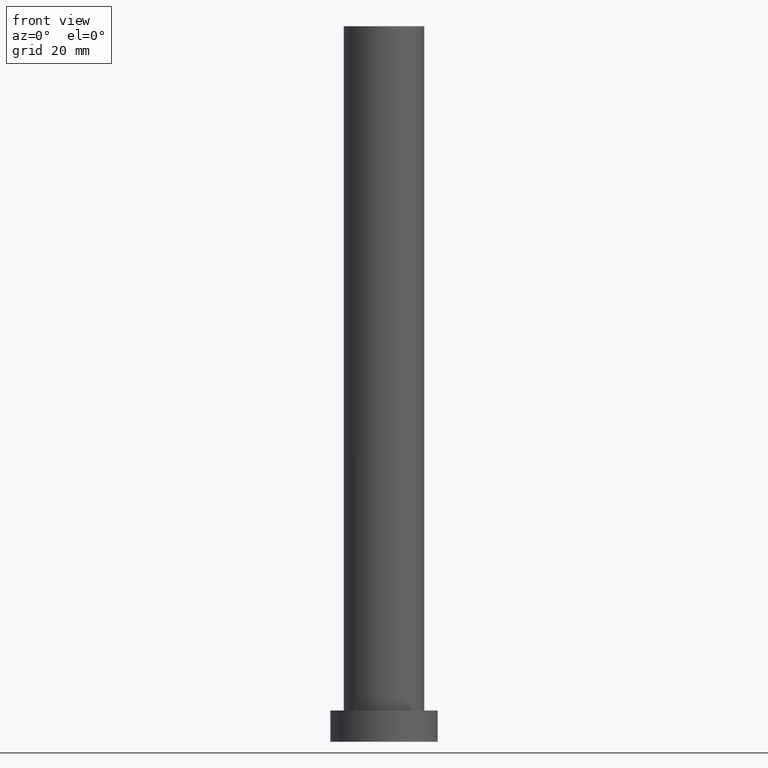
[diagram: clean part render]
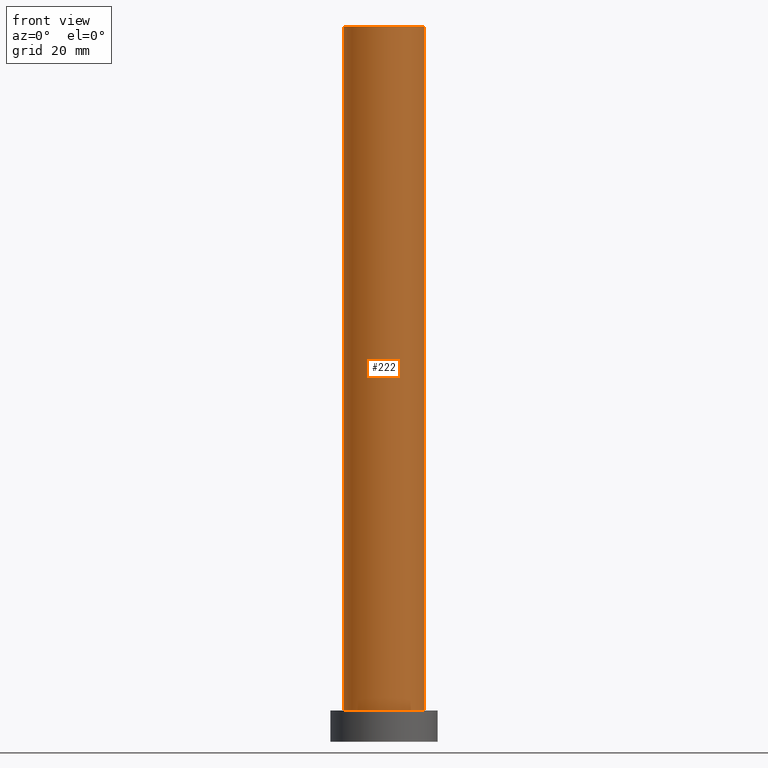
[diagram: same view with one face highlighted and labeled with its STEP entity id]
A machine part, front view. The second image highlights one B-rep face of the part: STEP entity #222.
In plain terms, the highlighted cylindrical surface (partial cylindrical patch) has radius 9 mm, axis along (-0, -0, -1).
Its self-contained STEP definition (entity closure, byte-faithful):
#1 = VERTEX_POINT ( 'NONE', #101 ) ;
#4 = DIRECTION ( 'NONE',  ( 0.000000000000000000, 0.000000000000000000, 1.000000000000000000 ) ) ;
#5 = LINE ( 'NONE', #227, #150 ) ;
#10 = EDGE_CURVE ( 'NONE', #177, #1, #235, .T. ) ;
#18 = EDGE_CURVE ( 'NONE', #1, #254, #213, .T. ) ;
#20 = DIRECTION ( 'NONE',  ( 1.000000000000000000, 0.000000000000000000, 0.000000000000000000 ) ) ;
#24 = ORIENTED_EDGE ( 'NONE', *, *, #18, .F. ) ;
#27 = DIRECTION ( 'NONE',  ( -0.000000000000000000, -0.000000000000000000, -1.000000000000000000 ) ) ;
#29 = DIRECTION ( 'NONE',  ( -0.000000000000000000, -0.000000000000000000, -1.000000000000000000 ) ) ;
#45 = CYLINDRICAL_SURFACE ( 'NONE', #245, 9.000000000000000000 ) ;
#57 = EDGE_CURVE ( 'NONE', #177, #65, #5, .T. ) ;
#65 = VERTEX_POINT ( 'NONE', #124 ) ;
#94 = AXIS2_PLACEMENT_3D ( 'NONE', #181, #224, #146 ) ;
#101 = CARTESIAN_POINT ( 'NONE',  ( 9.000000000000000000, 1.102182119232617714E-15, 160.0000000000000000 ) ) ;
#104 = CARTESIAN_POINT ( 'NONE',  ( 0.000000000000000000, 0.000000000000000000, 160.0000000000000000 ) ) ;
#123 = EDGE_CURVE ( 'NONE', #65, #254, #170, .T. ) ;
#124 = CARTESIAN_POINT ( 'NONE',  ( -9.000000000000000000, 0.000000000000000000, 7.000000000000000000 ) ) ;
#125 = CARTESIAN_POINT ( 'NONE',  ( -9.000000000000000000, 0.000000000000000000, 160.0000000000000000 ) ) ;
#133 = CARTESIAN_POINT ( 'NONE',  ( 9.000000000000000000, 1.102182119232617714E-15, 7.000000000000000000 ) ) ;
#139 = ORIENTED_EDGE ( 'NONE', *, *, #57, .T. ) ;
#142 = VECTOR ( 'NONE', #27, 1000.000000000000000 ) ;
#146 = DIRECTION ( 'NONE',  ( 1.000000000000000000, 0.000000000000000000, 0.000000000000000000 ) ) ;
#150 = VECTOR ( 'NONE', #183, 1000.000000000000000 ) ;
#156 = ORIENTED_EDGE ( 'NONE', *, *, #10, .F. ) ;
#160 = DIRECTION ( 'NONE',  ( -1.000000000000000000, 0.000000000000000000, 0.000000000000000000 ) ) ;
#170 = CIRCLE ( 'NONE', #94, 9.000000000000000000 ) ;
#177 = VERTEX_POINT ( 'NONE', #125 ) ;
#179 = CARTESIAN_POINT ( 'NONE',  ( 0.000000000000000000, 0.000000000000000000, 160.0000000000000000 ) ) ;
#181 = CARTESIAN_POINT ( 'NONE',  ( 0.000000000000000000, 0.000000000000000000, 7.000000000000000000 ) ) ;
#183 = DIRECTION ( 'NONE',  ( -0.000000000000000000, -0.000000000000000000, -1.000000000000000000 ) ) ;
#186 = CARTESIAN_POINT ( 'NONE',  ( 9.000000000000000000, 1.102182119232617714E-15, 160.0000000000000000 ) ) ;
#213 = LINE ( 'NONE', #186, #142 ) ;
#214 = ORIENTED_EDGE ( 'NONE', *, *, #123, .T. ) ;
#218 = EDGE_LOOP ( 'NONE', ( #24, #156, #139, #214 ) ) ;
#219 = AXIS2_PLACEMENT_3D ( 'NONE', #179, #4, #20 ) ;
#220 = FACE_OUTER_BOUND ( 'NONE', #218, .T. ) ;
#222 = ADVANCED_FACE ( 'NONE', ( #220 ), #45, .T. ) ;
#224 = DIRECTION ( 'NONE',  ( 0.000000000000000000, 0.000000000000000000, 1.000000000000000000 ) ) ;
#227 = CARTESIAN_POINT ( 'NONE',  ( -9.000000000000000000, 0.000000000000000000, 160.0000000000000000 ) ) ;
#235 = CIRCLE ( 'NONE', #219, 9.000000000000000000 ) ;
#245 = AXIS2_PLACEMENT_3D ( 'NONE', #104, #29, #160 ) ;
#254 = VERTEX_POINT ( 'NONE', #133 ) ;